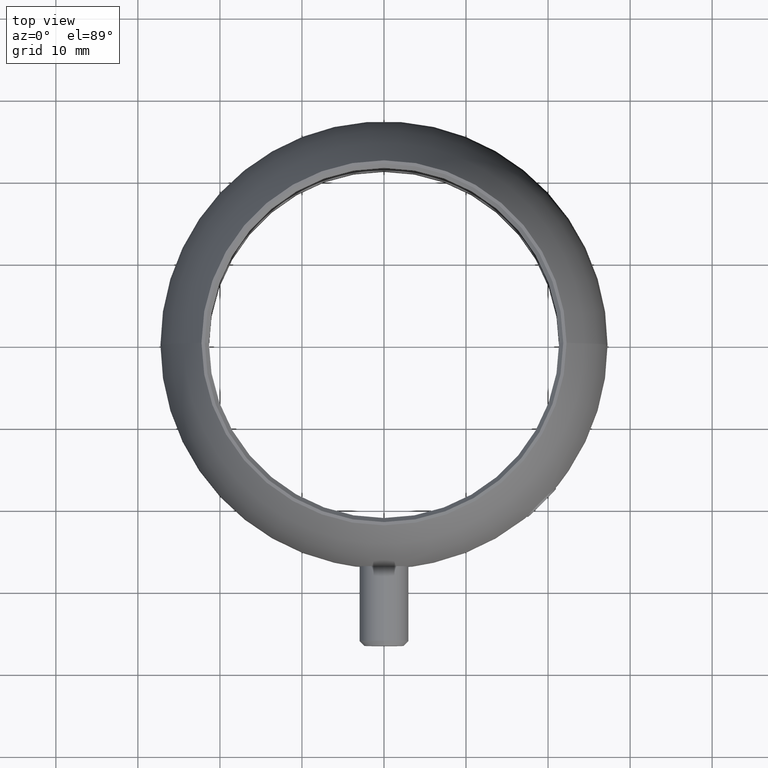
[diagram: clean part render]
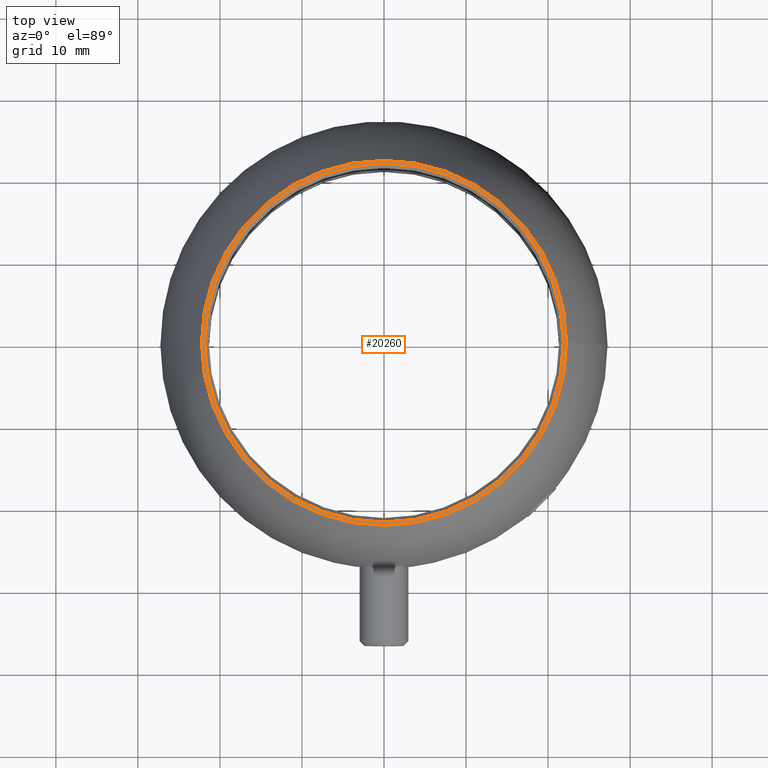
[diagram: same view with one face highlighted and labeled with its STEP entity id]
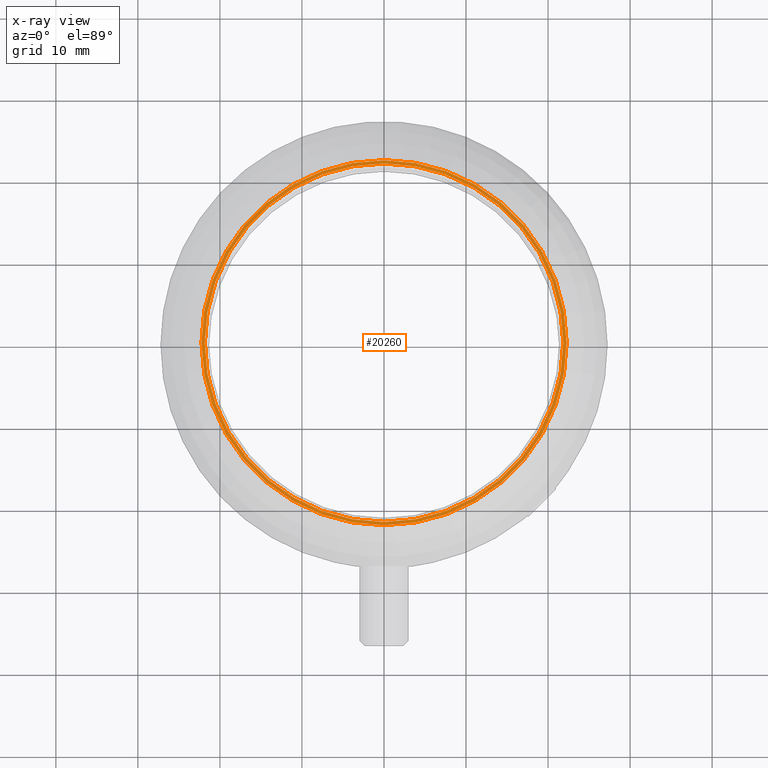
[diagram: x-ray of the same camera — body ghosted, the highlighted face saturated]
A machine part, top view. The second image highlights one B-rep face of the part: STEP entity #20260.
The next image is the same camera in x-ray: the body ghosted, the highlighted face saturated — about 0% of this face is hidden behind the body in this view.
In plain terms, the highlighted planar face has unit normal (0, 0, -1).
Its self-contained STEP definition (entity closure, byte-faithful):
#344 = DIRECTION ( 'NONE',  ( -0.000000000000000000, -0.000000000000000000, 1.000000000000000000 ) ) ;
#408 = CARTESIAN_POINT ( 'NONE',  ( 0.000000000000000000, 0.000000000000000000, 15.00000000000000000 ) ) ;
#1393 = DIRECTION ( 'NONE',  ( 1.000000000000000000, 0.000000000000000000, 0.000000000000000000 ) ) ;
#2537 = CARTESIAN_POINT ( 'NONE',  ( 0.000000000000000000, 0.000000000000000000, 15.00000000000000000 ) ) ;
#3398 = FACE_BOUND ( 'NONE', #12358, .T. ) ;
#4354 = AXIS2_PLACEMENT_3D ( 'NONE', #408, #344, #11668 ) ;
#5781 = EDGE_CURVE ( 'NONE', #13174, #11604, #14407, .T. ) ;
#5940 = VERTEX_POINT ( 'NONE', #18508 ) ;
#6789 = ORIENTED_EDGE ( 'NONE', *, *, #5781, .T. ) ;
#7101 = EDGE_CURVE ( 'NONE', #10622, #5940, #10861, .T. ) ;
#7216 = DIRECTION ( 'NONE',  ( 0.000000000000000000, 0.000000000000000000, -1.000000000000000000 ) ) ;
#8368 = AXIS2_PLACEMENT_3D ( 'NONE', #9588, #15879, #1393 ) ;
#9588 = CARTESIAN_POINT ( 'NONE',  ( 0.000000000000000000, 0.000000000000000000, 15.00000000000000000 ) ) ;
#10622 = VERTEX_POINT ( 'NONE', #11095 ) ;
#10861 = CIRCLE ( 'NONE', #4354, 21.85000000000000142 ) ;
#10953 = EDGE_LOOP ( 'NONE', ( #6789, #20536 ) ) ;
#11095 = CARTESIAN_POINT ( 'NONE',  ( 21.85000000000000142, 0.000000000000000000, 15.00000000000000000 ) ) ;
#11487 = AXIS2_PLACEMENT_3D ( 'NONE', #16849, #7216, #13685 ) ;
#11515 = FACE_OUTER_BOUND ( 'NONE', #10953, .T. ) ;
#11604 = VERTEX_POINT ( 'NONE', #14959 ) ;
#11668 = DIRECTION ( 'NONE',  ( 1.000000000000000000, 0.000000000000000000, 0.000000000000000000 ) ) ;
#11726 = CIRCLE ( 'NONE', #11765, 21.85000000000000142 ) ;
#11765 = AXIS2_PLACEMENT_3D ( 'NONE', #2537, #12162, #18639 ) ;
#12162 = DIRECTION ( 'NONE',  ( -0.000000000000000000, -0.000000000000000000, 1.000000000000000000 ) ) ;
#12229 = AXIS2_PLACEMENT_3D ( 'NONE', #15345, #13511, #20138 ) ;
#12358 = EDGE_LOOP ( 'NONE', ( #16689, #17123 ) ) ;
#13174 = VERTEX_POINT ( 'NONE', #18583 ) ;
#13511 = DIRECTION ( 'NONE',  ( -0.000000000000000000, -0.000000000000000000, 1.000000000000000000 ) ) ;
#13685 = DIRECTION ( 'NONE',  ( -1.000000000000000000, 0.000000000000000000, -0.000000000000000000 ) ) ;
#14407 = CIRCLE ( 'NONE', #12229, 22.25000000000000000 ) ;
#14959 = CARTESIAN_POINT ( 'NONE',  ( -22.25000000000000000, 2.724839128102860991E-15, 15.00000000000000000 ) ) ;
#15345 = CARTESIAN_POINT ( 'NONE',  ( 0.000000000000000000, 0.000000000000000000, 15.00000000000000000 ) ) ;
#15734 = EDGE_CURVE ( 'NONE', #5940, #10622, #11726, .T. ) ;
#15879 = DIRECTION ( 'NONE',  ( -0.000000000000000000, -0.000000000000000000, 1.000000000000000000 ) ) ;
#16689 = ORIENTED_EDGE ( 'NONE', *, *, #7101, .F. ) ;
#16849 = CARTESIAN_POINT ( 'NONE',  ( 0.000000000000000000, 22.25000000000000000, 15.00000000000000000 ) ) ;
#17123 = ORIENTED_EDGE ( 'NONE', *, *, #15734, .F. ) ;
#18508 = CARTESIAN_POINT ( 'NONE',  ( -21.85000000000000142, 2.675853256136966774E-15, 15.00000000000000000 ) ) ;
#18583 = CARTESIAN_POINT ( 'NONE',  ( 22.25000000000000000, 0.000000000000000000, 15.00000000000000000 ) ) ;
#18639 = DIRECTION ( 'NONE',  ( 1.000000000000000000, 0.000000000000000000, 0.000000000000000000 ) ) ;
#18841 = CIRCLE ( 'NONE', #8368, 22.25000000000000000 ) ;
#19857 = EDGE_CURVE ( 'NONE', #11604, #13174, #18841, .T. ) ;
#19964 = PLANE ( 'NONE',  #11487 ) ;
#20138 = DIRECTION ( 'NONE',  ( 1.000000000000000000, 0.000000000000000000, 0.000000000000000000 ) ) ;
#20260 = ADVANCED_FACE ( 'NONE', ( #3398, #11515 ), #19964, .F. ) ;
#20536 = ORIENTED_EDGE ( 'NONE', *, *, #19857, .T. ) ;